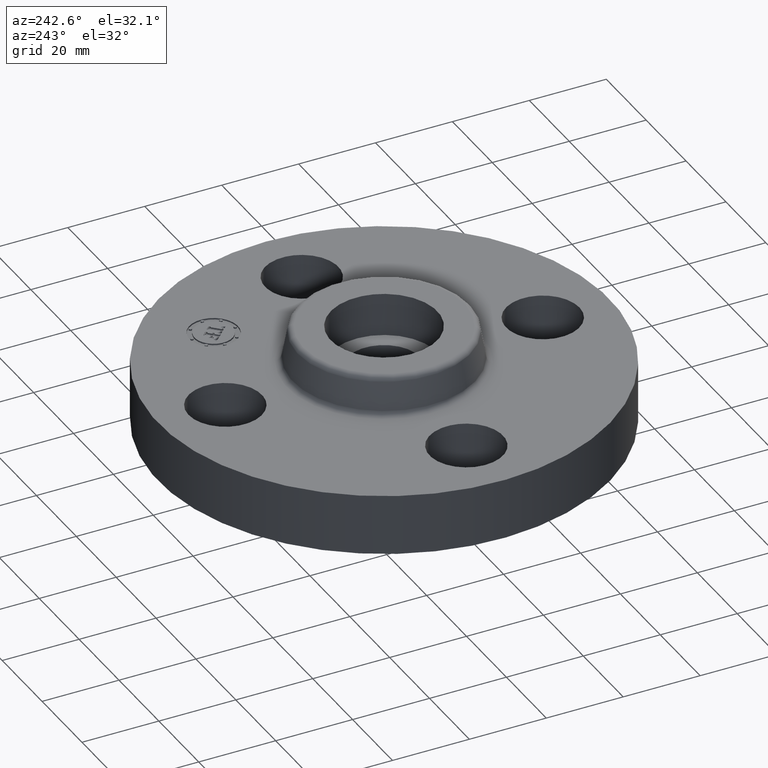
[diagram: clean part render]
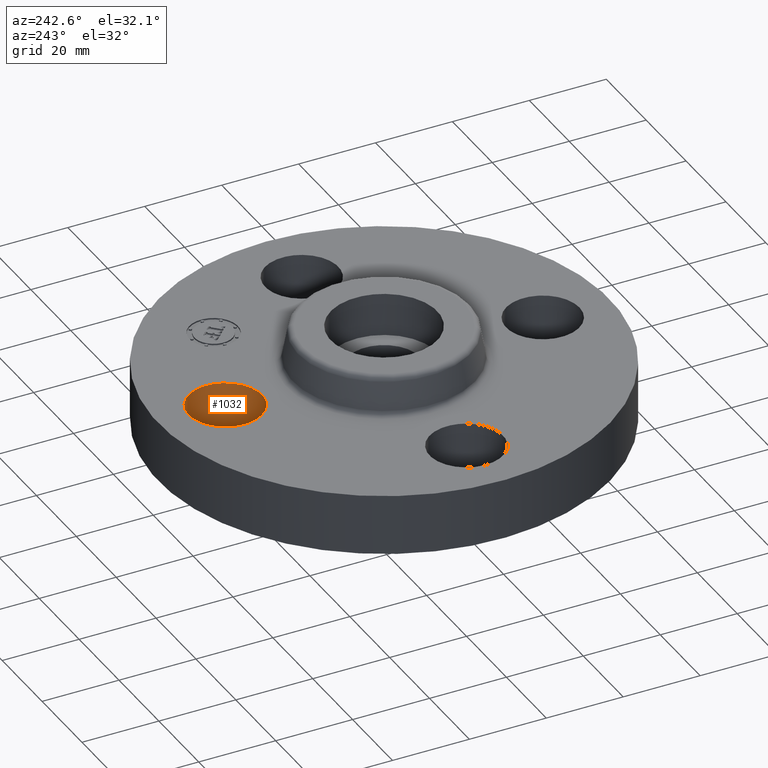
[diagram: same view with one face highlighted and labeled with its STEP entity id]
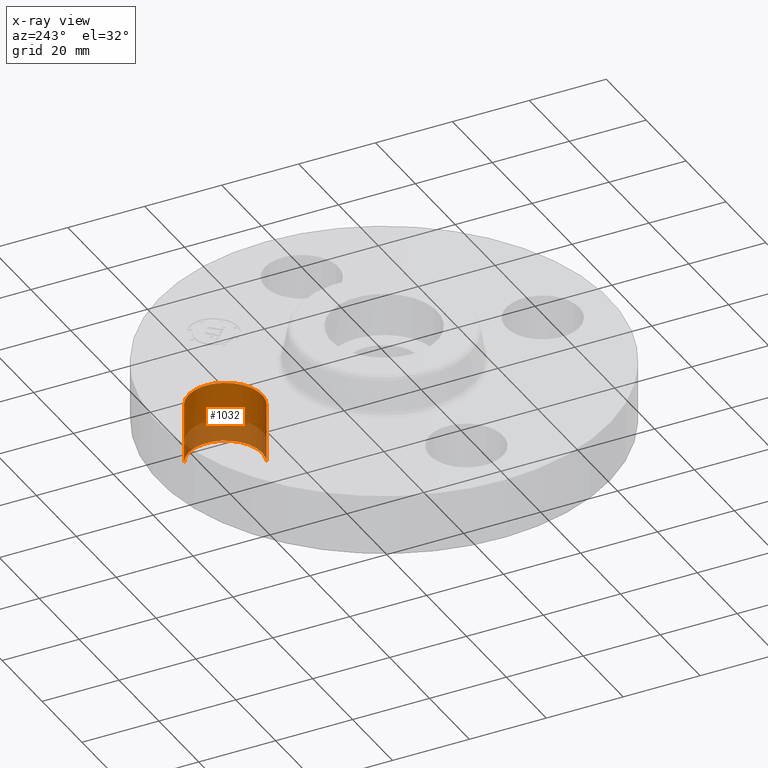
[diagram: x-ray of the same camera — body ghosted, the highlighted face saturated]
A machine part, auxiliary view. The second image highlights one B-rep face of the part: STEP entity #1032.
The next image is the same camera in x-ray: the body ghosted, the highlighted face saturated — about 32% of this face is hidden behind the body in this view.
In plain terms, the highlighted cylindrical surface (partial cylindrical patch) has radius 9.525 mm, axis along (-0, 0, -1).
Its self-contained STEP definition (entity closure, byte-faithful):
#593=AXIS2_PLACEMENT_3D('Circle Axis2P3D',#591,#592,$) ;
#1007=AXIS2_PLACEMENT_3D('Cylinder Axis2P3D',#1004,#1005,#1006) ;
#586=CARTESIAN_POINT('Vertex',(-0.179784576973,1.29590653927,0.)) ;
#588=CARTESIAN_POINT('Vertex',(0.179784576973,1.95409346073,0.)) ;
#591=CARTESIAN_POINT('Axis2P3D Location',(-4.36653687836E-011,1.62500000002,0.)) ;
#971=CARTESIAN_POINT('Line Origine',(-0.179784576977,1.2959065393,0.309999999994)) ;
#975=CARTESIAN_POINT('Vertex',(-0.179784576973,1.2959065393,0.620000000002)) ;
#978=CARTESIAN_POINT('Line Origine',(0.179784576977,1.95409346072,0.309999999994)) ;
#982=CARTESIAN_POINT('Vertex',(0.179784576977,1.95409346072,0.619999999987)) ;
#1004=CARTESIAN_POINT('Axis2P3D Location',(-2.98507657293E-016,1.62500000001,0.616062992128)) ;
#1010=CARTESIAN_POINT('Control Point',(0.179784576977,1.95409346072,0.620000000002)) ;
#1011=CARTESIAN_POINT('Control Point',(0.231478456903,1.92585296541,0.620000000001)) ;
#1012=CARTESIAN_POINT('Control Point',(0.27762732854,1.88746240051,0.620000000001)) ;
#1013=CARTESIAN_POINT('Control Point',(0.315564920645,1.84036533168,0.62)) ;
#1014=CARTESIAN_POINT('Control Point',(0.370929207243,1.73383359426,0.619999999998)) ;
#1015=CARTESIAN_POINT('Control Point',(0.38190110985,1.61427677655,0.619999999997)) ;
#1016=CARTESIAN_POINT('Control Point',(0.375424381748,1.55414819117,0.619999999996)) ;
#1017=CARTESIAN_POINT('Control Point',(0.339243530298,1.43967041474,0.619999999995)) ;
#1018=CARTESIAN_POINT('Control Point',(0.262462400496,1.34737267147,0.619999999993)) ;
#1019=CARTESIAN_POINT('Control Point',(0.215365331668,1.30943507936,0.619999999992)) ;
#1020=CARTESIAN_POINT('Control Point',(0.108833594252,1.25407079277,0.619999999991)) ;
#1021=CARTESIAN_POINT('Control Point',(-0.0107232234562,1.24309889016,0.61999999999)) ;
#1022=CARTESIAN_POINT('Control Point',(-0.0708518088378,1.24957561826,0.619999999989)) ;
#1023=CARTESIAN_POINT('Control Point',(-0.128090697051,1.26766604399,0.619999999988)) ;
#1024=CARTESIAN_POINT('Control Point',(-0.179784576977,1.2959065393,0.619999999987)) ;
#592=DIRECTION('Axis2P3D Direction',(0.,0.,-0.0393700787402)) ;
#972=DIRECTION('Vector Direction',(0.,0.,-0.0393700787402)) ;
#979=DIRECTION('Vector Direction',(0.,0.,-0.0393700787402)) ;
#1005=DIRECTION('Axis2P3D Direction',(-0.,0.,-0.0393700787402)) ;
#1006=DIRECTION('Axis2P3D XDirection',(0.0188750212049,0.0345504945626,0.)) ;
#973=VECTOR('Line Direction',#972,0.0393700787402) ;
#980=VECTOR('Line Direction',#979,0.0393700787402) ;
#1027=ORIENTED_EDGE('',*,*,#984,.F.) ;
#1028=ORIENTED_EDGE('',*,*,#595,.T.) ;
#1029=ORIENTED_EDGE('',*,*,#977,.T.) ;
#1030=ORIENTED_EDGE('',*,*,#1025,.F.) ;
#1032=ADVANCED_FACE('PartBody',(#1031),#1008,.F.) ;
#1009=B_SPLINE_CURVE_WITH_KNOTS('',5,(#1010,#1011,#1012,#1013,#1014,#1015,#1016,#1017,#1018,#1019,#1020,#1021,#1022,#1023,#1024),.UNSPECIFIED.,.F.,.U.,(6,3,3,3,6),(-14.9618350128,-7.48091750638,0.,7.48091750638,14.9618350128),.UNSPECIFIED.) ;
#594=CIRCLE('generated circle',#593,0.375000000021) ;
#1008=CYLINDRICAL_SURFACE('generated cylinder',#1007,0.375000000001) ;
#595=EDGE_CURVE('',#589,#587,#594,.T.) ;
#977=EDGE_CURVE('',#587,#976,#974,.F.) ;
#984=EDGE_CURVE('',#589,#983,#981,.F.) ;
#1025=EDGE_CURVE('',#983,#976,#1009,.T.) ;
#1026=EDGE_LOOP('',(#1027,#1028,#1029,#1030)) ;
#1031=FACE_OUTER_BOUND('',#1026,.T.) ;
#974=LINE('Line',#971,#973) ;
#981=LINE('Line',#978,#980) ;
#587=VERTEX_POINT('',#586) ;
#589=VERTEX_POINT('',#588) ;
#976=VERTEX_POINT('',#975) ;
#983=VERTEX_POINT('',#982) ;